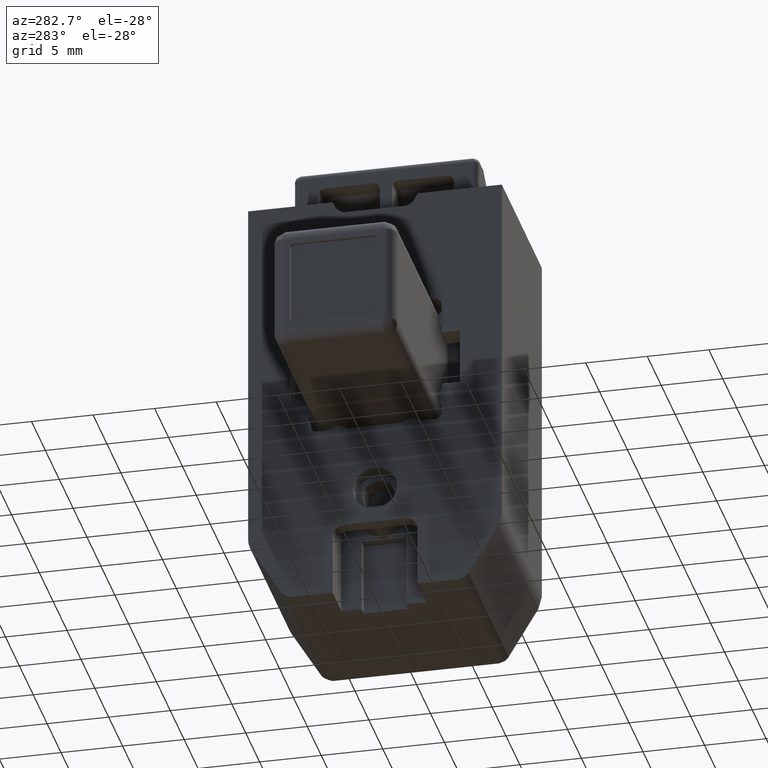
[diagram: clean part render]
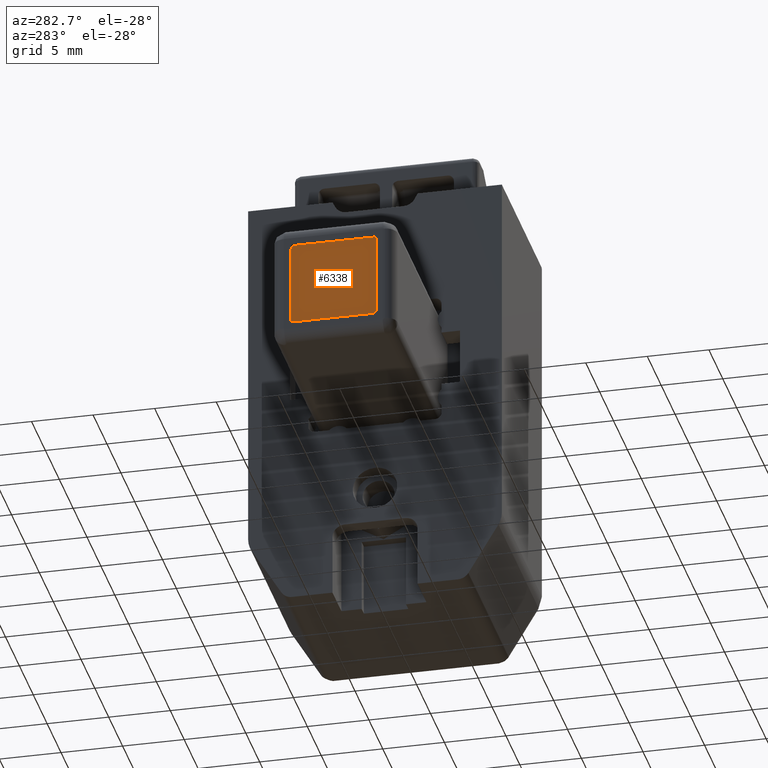
[diagram: same view with one face highlighted and labeled with its STEP entity id]
A machine part, auxiliary view. The second image highlights one B-rep face of the part: STEP entity #6338.
In plain terms, the highlighted face is a freeform B-spline surface patch.
Its self-contained STEP definition (entity closure, byte-faithful):
#6243=CARTESIAN_POINT('',(-14.699999999999999,3.849649986432647,3.849649986432756));
#6244=CARTESIAN_POINT('',(-14.699999999999999,-3.849650174187377,3.849649986432756));
#6245=CARTESIAN_POINT('',(-14.699999999999999,3.849649986432647,-3.849650174187279));
#6246=CARTESIAN_POINT('',(-14.699999999999999,-3.849650174187377,-3.849650174187279));
#6247=B_SPLINE_SURFACE_WITH_KNOTS('',1,1,((#6243,#6245),(#6244,#6246)),.UNSPECIFIED.,.F.,.F.,.U.,(2,2),(2,2),(0.0,7.699300160620024),(0.0,7.699300160620036),.UNSPECIFIED.);
#6248=CARTESIAN_POINT('',(-14.699999999999999,3.500000000000000,-3.200000000000000));
#6249=VERTEX_POINT('',#6248);
#6250=CARTESIAN_POINT('',(-14.699999999999999,3.500000000000000,3.200000000000110));
#6251=VERTEX_POINT('',#6250);
#6252=CARTESIAN_POINT('',(-14.699999999999999,3.500000000000000,-3.200000000000000));
#6253=CARTESIAN_POINT('',(-14.699999999999999,3.500000000000000,3.200000000000110));
#6254=QUASI_UNIFORM_CURVE('',1,(#6252,#6253),.UNSPECIFIED.,.F.,.U.);
#6255=EDGE_CURVE('',#6249,#6251,#6254,.T.);
#6256=ORIENTED_EDGE('',*,*,#6255,.F.);
#6257=CARTESIAN_POINT('',(-14.699999999999999,3.200000000000000,-3.500000000000000));
#6258=VERTEX_POINT('',#6257);
#6259=CARTESIAN_POINT('',(-14.699999999999999,3.500000000000000,-3.200000000000000));
#6260=CARTESIAN_POINT('',(-14.700000000000003,3.500000000000000,-3.500000000000000));
#6261=CARTESIAN_POINT('',(-14.699999999999999,3.200000000000000,-3.500000000000000));
#6269=(BOUNDED_CURVE()B_SPLINE_CURVE(2,(#6259,#6260,#6261),.UNSPECIFIED.,.F.,.U.)CURVE()GEOMETRIC_REPRESENTATION_ITEM()QUASI_UNIFORM_CURVE()RATIONAL_B_SPLINE_CURVE((1.0,0.707106781186547,1.0))REPRESENTATION_ITEM(''));
#6270=EDGE_CURVE('',#6249,#6258,#6269,.T.);
#6271=ORIENTED_EDGE('',*,*,#6270,.T.);
#6272=CARTESIAN_POINT('',(-14.699999999999999,-3.200000000000105,-3.500000000000000));
#6273=VERTEX_POINT('',#6272);
#6274=CARTESIAN_POINT('',(-14.699999999999999,-3.200000000000105,-3.500000000000000));
#6275=CARTESIAN_POINT('',(-14.699999999999999,3.200000000000000,-3.500000000000000));
#6276=QUASI_UNIFORM_CURVE('',1,(#6274,#6275),.UNSPECIFIED.,.F.,.U.);
#6277=EDGE_CURVE('',#6273,#6258,#6276,.T.);
#6278=ORIENTED_EDGE('',*,*,#6277,.F.);
#6279=CARTESIAN_POINT('',(-14.699999999999999,-3.500000000000000,-3.200000000000000));
#6280=VERTEX_POINT('',#6279);
#6281=CARTESIAN_POINT('',(-14.699999999999999,-3.200000000000105,-3.500000000000000));
#6282=CARTESIAN_POINT('',(-14.700000000000003,-3.500000000000104,-3.500000000000000));
#6283=CARTESIAN_POINT('',(-14.699999999999999,-3.500000000000000,-3.200000000000000));
#6291=(BOUNDED_CURVE()B_SPLINE_CURVE(2,(#6281,#6282,#6283),.UNSPECIFIED.,.F.,.U.)CURVE()GEOMETRIC_REPRESENTATION_ITEM()QUASI_UNIFORM_CURVE()RATIONAL_B_SPLINE_CURVE((1.0,0.707106781186547,1.0))REPRESENTATION_ITEM(''));
#6292=EDGE_CURVE('',#6273,#6280,#6291,.T.);
#6293=ORIENTED_EDGE('',*,*,#6292,.T.);
#6294=CARTESIAN_POINT('',(-14.699999999999999,-3.500000000000100,3.200000000000110));
#6295=VERTEX_POINT('',#6294);
#6296=CARTESIAN_POINT('',(-14.699999999999999,-3.500000000000100,3.200000000000110));
#6297=CARTESIAN_POINT('',(-14.699999999999999,-3.500000000000000,-3.200000000000000));
#6298=QUASI_UNIFORM_CURVE('',1,(#6296,#6297),.UNSPECIFIED.,.F.,.U.);
#6299=EDGE_CURVE('',#6295,#6280,#6298,.T.);
#6300=ORIENTED_EDGE('',*,*,#6299,.F.);
#6301=CARTESIAN_POINT('',(-14.699999999999999,-3.200000000000105,3.500000000000000));
#6302=VERTEX_POINT('',#6301);
#6303=CARTESIAN_POINT('',(-14.699999999999999,-3.500000000000105,3.200000000000110));
#6304=CARTESIAN_POINT('',(-14.700000000000003,-3.500000000000104,3.500000000000110));
#6305=CARTESIAN_POINT('',(-14.699999999999999,-3.200000000000105,3.500000000000000));
#6313=(BOUNDED_CURVE()B_SPLINE_CURVE(2,(#6303,#6304,#6305),.UNSPECIFIED.,.F.,.U.)CURVE()GEOMETRIC_REPRESENTATION_ITEM()QUASI_UNIFORM_CURVE()RATIONAL_B_SPLINE_CURVE((1.0,0.707106781186547,1.0))REPRESENTATION_ITEM(''));
#6314=EDGE_CURVE('',#6295,#6302,#6313,.T.);
#6315=ORIENTED_EDGE('',*,*,#6314,.T.);
#6316=CARTESIAN_POINT('',(-14.699999999999999,3.200000000000000,3.500000000000110));
#6317=VERTEX_POINT('',#6316);
#6318=CARTESIAN_POINT('',(-14.699999999999999,3.200000000000000,3.500000000000110));
#6319=CARTESIAN_POINT('',(-14.699999999999999,-3.200000000000105,3.500000000000000));
#6320=QUASI_UNIFORM_CURVE('',1,(#6318,#6319),.UNSPECIFIED.,.F.,.U.);
#6321=EDGE_CURVE('',#6317,#6302,#6320,.T.);
#6322=ORIENTED_EDGE('',*,*,#6321,.F.);
#6323=CARTESIAN_POINT('',(-14.699999999999999,3.200000000000000,3.500000000000110));
#6324=CARTESIAN_POINT('',(-14.700000000000003,3.500000000000000,3.500000000000110));
#6325=CARTESIAN_POINT('',(-14.699999999999999,3.500000000000000,3.200000000000110));
#6333=(BOUNDED_CURVE()B_SPLINE_CURVE(2,(#6323,#6324,#6325),.UNSPECIFIED.,.F.,.U.)CURVE()GEOMETRIC_REPRESENTATION_ITEM()QUASI_UNIFORM_CURVE()RATIONAL_B_SPLINE_CURVE((1.0,0.707106781186547,1.0))REPRESENTATION_ITEM(''));
#6334=EDGE_CURVE('',#6317,#6251,#6333,.T.);
#6335=ORIENTED_EDGE('',*,*,#6334,.T.);
#6336=EDGE_LOOP('',(#6256,#6271,#6278,#6293,#6300,#6315,#6322,#6335));
#6337=FACE_OUTER_BOUND('',#6336,.T.);
#6338=ADVANCED_FACE('',(#6337),#6247,.F.);